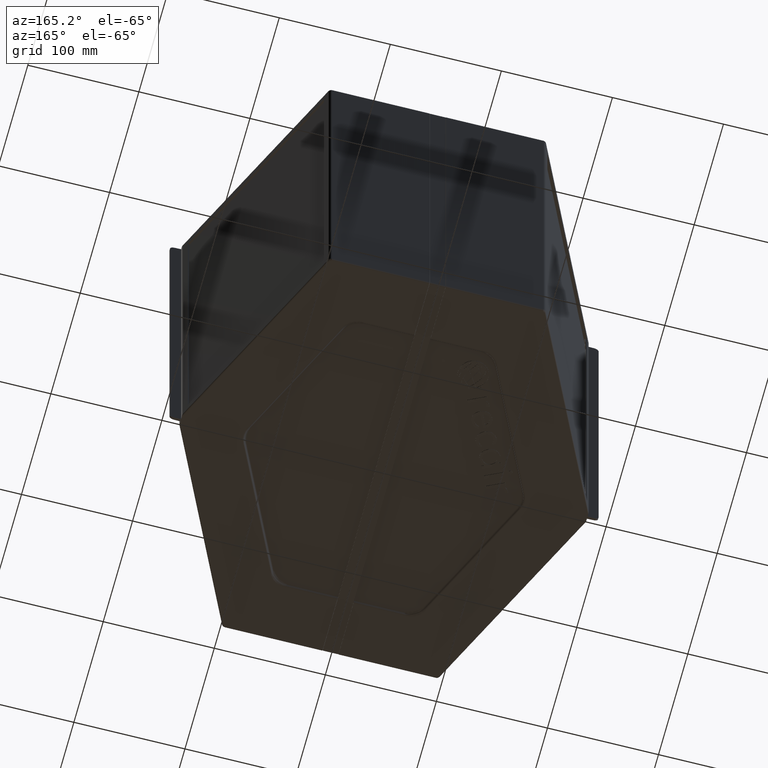
[diagram: clean part render]
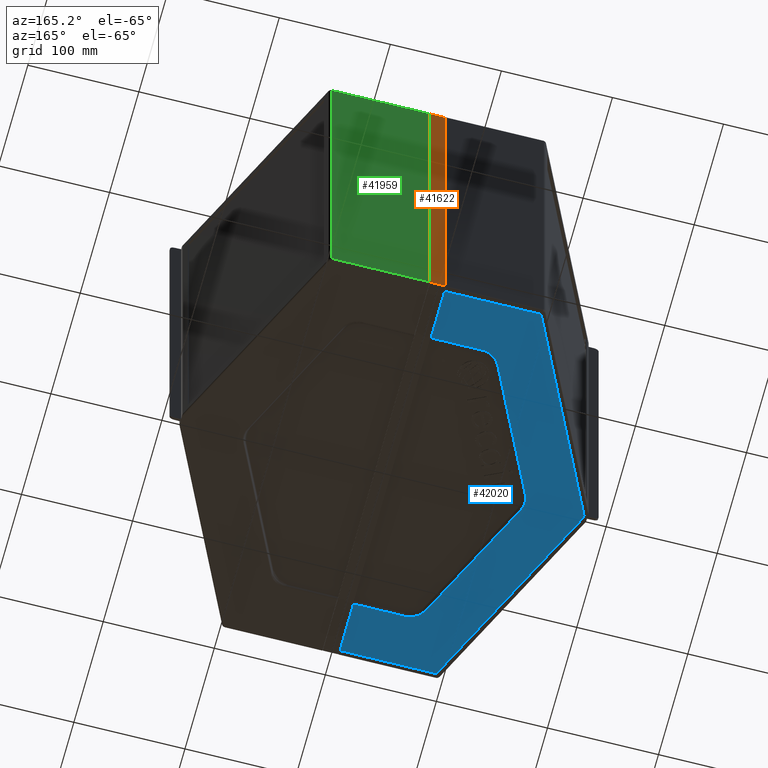
[diagram: same view with three faces highlighted in distinct colors, each labeled with its STEP entity id]
A machine part, auxiliary view with three faces highlighted in distinct colors.
Their STEP definitions:

[orange] entity #41622 — the highlighted planar face has unit normal (0, 1, 0).
#1776=PLANE('',#44000);
#3103=FACE_OUTER_BOUND('',#5374,.T.);
#5374=EDGE_LOOP('',(#27044,#27045,#27046,#27047));
#7701=LINE('',#57222,#11869);
#7702=LINE('',#57226,#11870);
#7703=LINE('',#57228,#11871);
#7704=LINE('',#57229,#11872);
#11869=VECTOR('',#47052,10.);
#11870=VECTOR('',#47057,10.);
#11871=VECTOR('',#47058,10.);
#11872=VECTOR('',#47059,10.);
#16974=VERTEX_POINT('',#57219);
#16975=VERTEX_POINT('',#57221);
#16976=VERTEX_POINT('',#57225);
#16977=VERTEX_POINT('',#57227);
#20956=EDGE_CURVE('',#16975,#16974,#7701,.T.);
#20958=EDGE_CURVE('',#16976,#16974,#7702,.T.);
#20959=EDGE_CURVE('',#16977,#16976,#7703,.T.);
#20960=EDGE_CURVE('',#16977,#16975,#7704,.T.);
#27044=ORIENTED_EDGE('',*,*,#20956,.T.);
#27045=ORIENTED_EDGE('',*,*,#20958,.F.);
#27046=ORIENTED_EDGE('',*,*,#20959,.F.);
#27047=ORIENTED_EDGE('',*,*,#20960,.T.);
#41622=ADVANCED_FACE('',(#3103),#1776,.T.);
#44000=AXIS2_PLACEMENT_3D('',#57224,#47055,#47056);
#47052=DIRECTION('',(1.,-2.42684948170448E-15,2.9720334497818E-31));
#47055=DIRECTION('center_axis',(2.42684948170448E-15,1.,1.02442724302206E-16));
#47056=DIRECTION('ref_axis',(0.,-1.02442724302206E-16,1.));
#47057=DIRECTION('',(0.,-1.02442724302206E-16,1.));
#47058=DIRECTION('',(1.,-2.42684948170448E-15,1.4860167248909E-31));
#47059=DIRECTION('',(0.,-1.02442724302206E-16,1.));
#57219=CARTESIAN_POINT('',(6.99999999999992,182.9,348.4));
#57221=CARTESIAN_POINT('',(-7.00000000000008,182.9,348.4));
#57222=CARTESIAN_POINT('',(-7.00000000000008,182.9,348.4));
#57224=CARTESIAN_POINT('Origin',(-7.00000000000008,182.9,1.60000000000004));
#57225=CARTESIAN_POINT('',(6.99999999999992,182.9,1.60000000000004));
#57226=CARTESIAN_POINT('',(6.99999999999992,182.9,1.60000000000004));
#57227=CARTESIAN_POINT('',(-7.00000000000008,182.9,1.60000000000004));
#57228=CARTESIAN_POINT('',(-7.00000000000008,182.9,1.60000000000004));
#57229=CARTESIAN_POINT('',(-7.00000000000008,182.9,1.60000000000004));

[blue] entity #42020 — the highlighted planar face has unit normal (0, 0, 1).
#548=ELLIPSE('',#44538,26.6259606026834,22.);
#549=ELLIPSE('',#44539,26.1317481714982,22.);
#550=ELLIPSE('',#44540,26.6259606026834,22.);
#2121=PLANE('',#44537);
#3501=FACE_OUTER_BOUND('',#5775,.T.);
#5775=EDGE_LOOP('',(#29606,#29607,#29608,#29609,#29610,#29611,#29612,#29613,
#29614,#29615,#29616,#29617,#29618,#29619,#29620,#29621));
#9178=LINE('',#60544,#13346);
#9179=LINE('',#60546,#13347);
#9180=LINE('',#60550,#13348);
#9181=LINE('',#60554,#13349);
#9182=LINE('',#60558,#13350);
#9183=LINE('',#60560,#13351);
#9184=LINE('',#60562,#13352);
#9185=LINE('',#60566,#13353);
#9186=LINE('',#60570,#13354);
#9187=LINE('',#60573,#13355);
#13346=VECTOR('',#49607,10.);
#13347=VECTOR('',#49608,10.);
#13348=VECTOR('',#49611,10.);
#13349=VECTOR('',#49614,10.);
#13350=VECTOR('',#49617,10.);
#13351=VECTOR('',#49618,10.);
#13352=VECTOR('',#49619,10.);
#13353=VECTOR('',#49622,10.);
#13354=VECTOR('',#49625,10.);
#13355=VECTOR('',#49628,10.);
#16136=CIRCLE('',#44541,1.99999999999996);
#16137=CIRCLE('',#44542,4.00000000000013);
#16138=CIRCLE('',#44543,1.99999999999993);
#18185=VERTEX_POINT('',#60542);
#18186=VERTEX_POINT('',#60543);
#18187=VERTEX_POINT('',#60545);
#18188=VERTEX_POINT('',#60547);
#18189=VERTEX_POINT('',#60549);
#18190=VERTEX_POINT('',#60551);
#18191=VERTEX_POINT('',#60553);
#18192=VERTEX_POINT('',#60555);
#18193=VERTEX_POINT('',#60557);
#18194=VERTEX_POINT('',#60559);
#18195=VERTEX_POINT('',#60561);
#18196=VERTEX_POINT('',#60563);
#18197=VERTEX_POINT('',#60565);
#18198=VERTEX_POINT('',#60567);
#18199=VERTEX_POINT('',#60569);
#18200=VERTEX_POINT('',#60571);
#22597=EDGE_CURVE('',#18185,#18186,#9178,.T.);
#22598=EDGE_CURVE('',#18187,#18185,#9179,.T.);
#22599=EDGE_CURVE('',#18188,#18187,#548,.T.);
#22600=EDGE_CURVE('',#18189,#18188,#9180,.T.);
#22601=EDGE_CURVE('',#18190,#18189,#549,.T.);
#22602=EDGE_CURVE('',#18191,#18190,#9181,.T.);
#22603=EDGE_CURVE('',#18192,#18191,#550,.T.);
#22604=EDGE_CURVE('',#18193,#18192,#9182,.T.);
#22605=EDGE_CURVE('',#18194,#18193,#9183,.T.);
#22606=EDGE_CURVE('',#18195,#18194,#9184,.T.);
#22607=EDGE_CURVE('',#18196,#18195,#16136,.T.);
#22608=EDGE_CURVE('',#18197,#18196,#9185,.T.);
#22609=EDGE_CURVE('',#18198,#18197,#16137,.T.);
#22610=EDGE_CURVE('',#18199,#18198,#9186,.T.);
#22611=EDGE_CURVE('',#18200,#18199,#16138,.T.);
#22612=EDGE_CURVE('',#18186,#18200,#9187,.T.);
#29606=ORIENTED_EDGE('',*,*,#22597,.F.);
#29607=ORIENTED_EDGE('',*,*,#22598,.F.);
#29608=ORIENTED_EDGE('',*,*,#22599,.F.);
#29609=ORIENTED_EDGE('',*,*,#22600,.F.);
#29610=ORIENTED_EDGE('',*,*,#22601,.F.);
#29611=ORIENTED_EDGE('',*,*,#22602,.F.);
#29612=ORIENTED_EDGE('',*,*,#22603,.F.);
#29613=ORIENTED_EDGE('',*,*,#22604,.F.);
#29614=ORIENTED_EDGE('',*,*,#22605,.F.);
#29615=ORIENTED_EDGE('',*,*,#22606,.F.);
#29616=ORIENTED_EDGE('',*,*,#22607,.F.);
#29617=ORIENTED_EDGE('',*,*,#22608,.F.);
#29618=ORIENTED_EDGE('',*,*,#22609,.F.);
#29619=ORIENTED_EDGE('',*,*,#22610,.F.);
#29620=ORIENTED_EDGE('',*,*,#22611,.F.);
#29621=ORIENTED_EDGE('',*,*,#22612,.F.);
#42020=ADVANCED_FACE('',(#3501),#2121,.F.);
#44537=AXIS2_PLACEMENT_3D('',#60541,#49605,#49606);
#44538=AXIS2_PLACEMENT_3D('',#60548,#49609,#49610);
#44539=AXIS2_PLACEMENT_3D('',#60552,#49612,#49613);
#44540=AXIS2_PLACEMENT_3D('',#60556,#49615,#49616);
#44541=AXIS2_PLACEMENT_3D('',#60564,#49620,#49621);
#44542=AXIS2_PLACEMENT_3D('',#60568,#49623,#49624);
#44543=AXIS2_PLACEMENT_3D('',#60572,#49626,#49627);
#49605=DIRECTION('center_axis',(0.,0.,1.));
#49606=DIRECTION('ref_axis',(1.,0.,0.));
#49607=DIRECTION('',(-1.17050303119039E-15,1.,0.));
#49608=DIRECTION('',(1.,0.,0.));
#49609=DIRECTION('center_axis',(0.,0.,-1.));
#49610=DIRECTION('ref_axis',(-0.531768155588311,0.84688997437814,0.));
#49611=DIRECTION('',(0.434445257404412,0.90069823932259,0.));
#49612=DIRECTION('center_axis',(0.,0.,-1.));
#49613=DIRECTION('ref_axis',(-1.,-1.36376018194318E-16,0.));
#49614=DIRECTION('',(-0.434445257404412,0.90069823932259,0.));
#49615=DIRECTION('center_axis',(0.,0.,-1.));
#49616=DIRECTION('ref_axis',(-0.531768155588311,-0.84688997437814,0.));
#49617=DIRECTION('',(-1.,0.,0.));
#49618=DIRECTION('',(7.88683022957761E-17,1.,0.));
#49619=DIRECTION('',(1.,8.30102461952844E-16,0.));
#49620=DIRECTION('center_axis',(0.,0.,1.));
#49621=DIRECTION('ref_axis',(8.88178419700128E-15,-1.,0.));
#49622=DIRECTION('',(0.434445257404411,-0.900698239322591,0.));
#49623=DIRECTION('center_axis',(0.,0.,1.));
#49624=DIRECTION('ref_axis',(-0.900698239322597,-0.434445257404399,0.));
#49625=DIRECTION('',(-0.434445257404413,-0.90069823932259,0.));
#49626=DIRECTION('center_axis',(0.,0.,1.));
#49627=DIRECTION('ref_axis',(-0.900698239322603,0.434445257404385,0.));
#49628=DIRECTION('',(-1.,-8.30102461952844E-16,0.));
#60541=CARTESIAN_POINT('Origin',(-90.2011045681756,2.66453525910038E-14,
-0.0001));
#60542=CARTESIAN_POINT('',(-7.44999999999997,132.154700538379,-0.000100000000000104));
#60543=CARTESIAN_POINT('',(-7.45000000000003,178.476740500801,-5.00000000000043E-5));
#60544=CARTESIAN_POINT('',(-7.45000000000003,181.476740500801,-0.0001));
#60545=CARTESIAN_POINT('',(-53.2536365674508,132.154700538379,0.));
#60546=CARTESIAN_POINT('',(-7.44999999999997,132.154700538379,-0.0001));
#60547=CARTESIAN_POINT('',(-70.4142428081909,121.379435503371,0.));
#60548=CARTESIAN_POINT('Origin',(-49.2658914438779,106.751288694036,0.));
#60549=CARTESIAN_POINT('',(-124.968239806459,8.2772938482496,0.));
#60550=CARTESIAN_POINT('',(-80.0546136872136,101.392878096739,0.));
#60551=CARTESIAN_POINT('',(-124.968239806459,-8.2772938482496,0.));
#60552=CARTESIAN_POINT('Origin',(-100.756600618366,-1.33304454993239E-16,
0.));
#60553=CARTESIAN_POINT('',(-70.4142428081908,-121.379435503371,0.));
#60554=CARTESIAN_POINT('',(-148.075034059984,39.6280487601191,0.));
#60555=CARTESIAN_POINT('',(-53.2536365674507,-132.154700538379,0.));
#60556=CARTESIAN_POINT('Origin',(-49.2658914438778,-106.751288694036,0.));
#60557=CARTESIAN_POINT('',(-7.45000000000006,-132.154700538379,0.));
#60558=CARTESIAN_POINT('',(-102.140004239958,-132.154700538379,0.));
#60559=CARTESIAN_POINT('',(-7.45000000000007,-178.476740500801,0.));
#60560=CARTESIAN_POINT('',(-7.45000000000005,-44.9543940920241,0.));
#60561=CARTESIAN_POINT('',(-93.04699173624,-178.476740500801,0.));
#60562=CARTESIAN_POINT('',(-116.417586422955,-178.476740500801,0.));
#60563=CARTESIAN_POINT('',(-94.8483882148852,-177.34563101561,0.));
#60564=CARTESIAN_POINT('Origin',(-93.0469917362401,-176.476740500801,0.));
#60565=CARTESIAN_POINT('',(-179.551559886208,-1.73778102961743,0.));
#60566=CARTESIAN_POINT('',(-194.352522341474,28.9477900441351,0.));
#60567=CARTESIAN_POINT('',(-179.551559886208,1.73778102961787,0.));
#60568=CARTESIAN_POINT('Origin',(-175.948766928918,2.19962936753859E-13,
0.));
#60569=CARTESIAN_POINT('',(-94.8483882148851,177.34563101561,0.));
#60570=CARTESIAN_POINT('',(-115.573965656593,134.377061805719,0.));
#60571=CARTESIAN_POINT('',(-93.0469917362399,178.476740500801,0.));
#60572=CARTESIAN_POINT('Origin',(-93.04699173624,176.476740500801,0.));
#60573=CARTESIAN_POINT('',(-73.6190905548347,178.476740500801,0.));

[green] entity #41959 — the highlighted planar face has unit normal (-0, 1, 0).
#2065=PLANE('',#44463);
#3440=FACE_OUTER_BOUND('',#5714,.T.);
#5714=EDGE_LOOP('',(#29244,#29245,#29246,#29247));
#9044=LINE('',#60229,#13212);
#9045=LINE('',#60231,#13213);
#9046=LINE('',#60233,#13214);
#9047=LINE('',#60234,#13215);
#13212=VECTOR('',#49325,10.);
#13213=VECTOR('',#49326,10.);
#13214=VECTOR('',#49327,10.);
#13215=VECTOR('',#49328,10.);
#18103=VERTEX_POINT('',#60227);
#18104=VERTEX_POINT('',#60228);
#18105=VERTEX_POINT('',#60230);
#18106=VERTEX_POINT('',#60232);
#22444=EDGE_CURVE('',#18103,#18104,#9044,.T.);
#22445=EDGE_CURVE('',#18104,#18105,#9045,.T.);
#22446=EDGE_CURVE('',#18105,#18106,#9046,.T.);
#22447=EDGE_CURVE('',#18103,#18106,#9047,.T.);
#29244=ORIENTED_EDGE('',*,*,#22444,.T.);
#29245=ORIENTED_EDGE('',*,*,#22445,.T.);
#29246=ORIENTED_EDGE('',*,*,#22446,.T.);
#29247=ORIENTED_EDGE('',*,*,#22447,.F.);
#41959=ADVANCED_FACE('',(#3440),#2065,.T.);
#44463=AXIS2_PLACEMENT_3D('',#60226,#49323,#49324);
#49323=DIRECTION('center_axis',(-4.04657543994372E-16,1.,0.));
#49324=DIRECTION('ref_axis',(0.,0.,1.));
#49325=DIRECTION('',(-1.,-3.65720017547176E-16,-8.37636553827121E-15));
#49326=DIRECTION('',(0.,0.,1.));
#49327=DIRECTION('',(1.,2.92918507735692E-16,-6.70893682597662E-15));
#49328=DIRECTION('',(0.,0.,1.));
#60226=CARTESIAN_POINT('Origin',(95.2592710903839,183.,175.));
#60227=CARTESIAN_POINT('',(95.2592710903839,183.,2.));
#60228=CARTESIAN_POINT('',(7.45000000000001,183.,1.99999999999926));
#60229=CARTESIAN_POINT('',(-97.142992134474,183.,1.99999999999839));
#60230=CARTESIAN_POINT('',(7.4499999999999,183.,348.000000000001));
#60231=CARTESIAN_POINT('',(7.45000000000001,183.,175.));
#60232=CARTESIAN_POINT('',(95.2592710903839,183.,348.));
#60233=CARTESIAN_POINT('',(3.98600424318176E-14,183.,348.000000000001));
#60234=CARTESIAN_POINT('',(95.2592710903839,183.,175.));